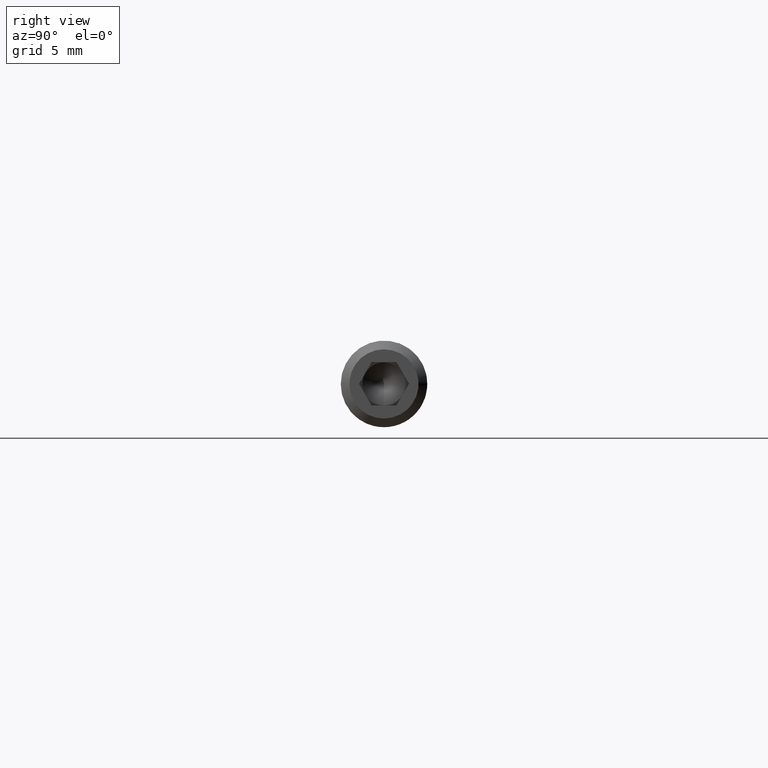
[diagram: clean part render]
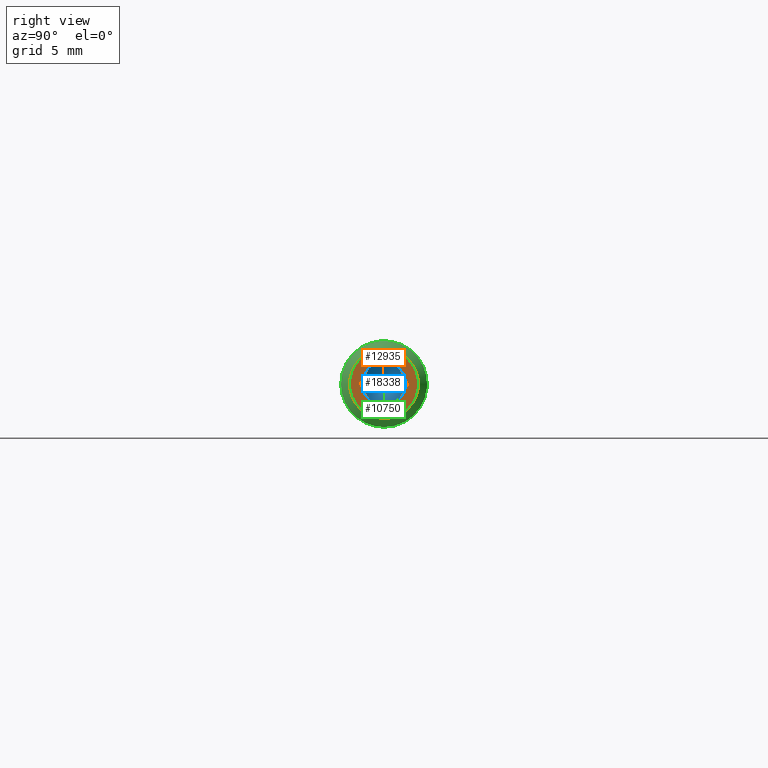
[diagram: same view with three faces highlighted in distinct colors, each labeled with its STEP entity id]
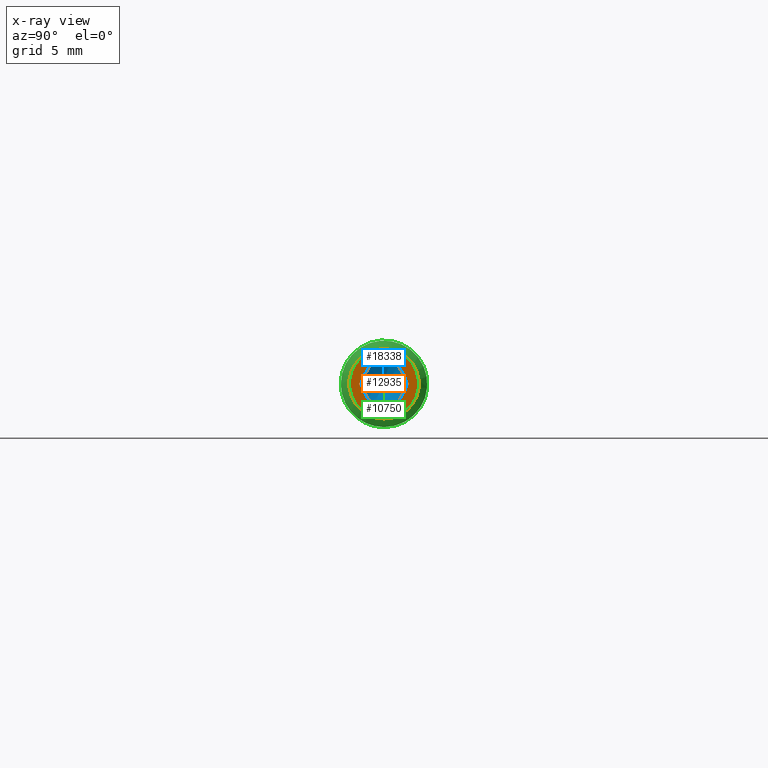
[diagram: x-ray of the same camera — body ghosted, the three highlighted faces saturated]
A machine part, right view with three faces highlighted in distinct colors.
The next image is the same camera in x-ray (body ghosted, the three faces saturated) — at least one of them is partly hidden behind the body in this view.
Their STEP definitions:

[orange] entity #12935 — the highlighted planar face has unit normal (1, 0, 0).
#53 = DIRECTION ( 'NONE',  ( 0.0000000000000000000, 1.000000000000000000, 0.0000000000000000000 ) ) ;
#325 = CARTESIAN_POINT ( 'NONE',  ( 50.00000000000000000, 0.8660254037844384900, 1.500000000000000000 ) ) ;
#434 = DIRECTION ( 'NONE',  ( 0.0000000000000000000, 0.5000000000000000000, 0.8660254037844386000 ) ) ;
#595 = CARTESIAN_POINT ( 'NONE',  ( 50.00000000000000000, -1.732050807568879000, 0.0000000000000000000 ) ) ;
#609 = PLANE ( 'NONE',  #17147 ) ;
#764 = FACE_OUTER_BOUND ( 'NONE', #2998, .T. ) ;
#879 = LINE ( 'NONE', #18397, #12787 ) ;
#1485 = EDGE_CURVE ( 'NONE', #17863, #10181, #879, .T. ) ;
#1592 = VECTOR ( 'NONE', #10855, 1000.000000000000000 ) ;
#1776 = ORIENTED_EDGE ( 'NONE', *, *, #6239, .T. ) ;
#2998 = EDGE_LOOP ( 'NONE', ( #1776 ) ) ;
#3606 = VECTOR ( 'NONE', #53, 1000.000000000000000 ) ;
#3886 = ORIENTED_EDGE ( 'NONE', *, *, #17257, .F. ) ;
#4361 = VERTEX_POINT ( 'NONE', #12421 ) ;
#6239 = EDGE_CURVE ( 'NONE', #16417, #16417, #10097, .T. ) ;
#6424 = CARTESIAN_POINT ( 'NONE',  ( 50.00000000000000000, 0.8660254037844384900, -1.499999999999999600 ) ) ;
#6779 = DIRECTION ( 'NONE',  ( 0.0000000000000000000, 0.0000000000000000000, -1.000000000000000000 ) ) ;
#6848 = DIRECTION ( 'NONE',  ( 0.0000000000000000000, -0.4999999999999999400, 0.8660254037844387100 ) ) ;
#7305 = VECTOR ( 'NONE', #17847, 1000.000000000000200 ) ;
#7415 = LINE ( 'NONE', #18643, #3606 ) ;
#8322 = VECTOR ( 'NONE', #9880, 1000.000000000000100 ) ;
#8689 = CARTESIAN_POINT ( 'NONE',  ( 50.00000000000000000, -1.732050807568878700, -4.766870681724039000E-018 ) ) ;
#8864 = CARTESIAN_POINT ( 'NONE',  ( 50.00000000000000000, -0.8660254037844396000, 1.500000000000000200 ) ) ;
#8963 = DIRECTION ( 'NONE',  ( 0.0000000000000000000, 0.0000000000000000000, -1.000000000000000000 ) ) ;
#9128 = ORIENTED_EDGE ( 'NONE', *, *, #17509, .F. ) ;
#9308 = EDGE_CURVE ( 'NONE', #4361, #17863, #13759, .T. ) ;
#9880 = DIRECTION ( 'NONE',  ( 0.0000000000000000000, 0.4999999999999997200, -0.8660254037844387100 ) ) ;
#10097 = CIRCLE ( 'NONE', #16151, 2.399999999999997700 ) ;
#10181 = VERTEX_POINT ( 'NONE', #325 ) ;
#10198 = CARTESIAN_POINT ( 'NONE',  ( 50.00000000000000000, -0.8660254037844408200, -1.499999999999999600 ) ) ;
#10623 = CARTESIAN_POINT ( 'NONE',  ( 50.00000000000000000, 0.0000000000000000000, 0.0000000000000000000 ) ) ;
#10798 = ORIENTED_EDGE ( 'NONE', *, *, #1485, .F. ) ;
#10855 = DIRECTION ( 'NONE',  ( 0.0000000000000000000, -1.000000000000000000, 1.251928832280965700E-016 ) ) ;
#11091 = EDGE_CURVE ( 'NONE', #13792, #15600, #11141, .T. ) ;
#11136 = CARTESIAN_POINT ( 'NONE',  ( 50.00000000000000000, 0.0000000000000000000, 0.0000000000000000000 ) ) ;
#11141 = LINE ( 'NONE', #12070, #7305 ) ;
#11325 = EDGE_LOOP ( 'NONE', ( #17320, #3886, #10798, #15673, #13219, #9128 ) ) ;
#12070 = CARTESIAN_POINT ( 'NONE',  ( 50.00000000000000000, -0.8660254037844396000, 1.500000000000000200 ) ) ;
#12306 = CARTESIAN_POINT ( 'NONE',  ( 50.00000000000000000, 0.8660254037844384900, 1.500000000000000000 ) ) ;
#12421 = CARTESIAN_POINT ( 'NONE',  ( 50.00000000000000000, 0.8660254037844384900, -1.499999999999999600 ) ) ;
#12538 = CARTESIAN_POINT ( 'NONE',  ( 50.00000000000000000, 0.0000000000000000000, -2.399999999999997700 ) ) ;
#12787 = VECTOR ( 'NONE', #6848, 1000.000000000000000 ) ;
#12935 = ADVANCED_FACE ( 'NONE', ( #17405, #764 ), #609, .T. ) ;
#13219 = ORIENTED_EDGE ( 'NONE', *, *, #17899, .F. ) ;
#13759 = LINE ( 'NONE', #6424, #14199 ) ;
#13792 = VERTEX_POINT ( 'NONE', #8864 ) ;
#14199 = VECTOR ( 'NONE', #434, 1000.000000000000200 ) ;
#14794 = DIRECTION ( 'NONE',  ( 1.000000000000000000, 0.0000000000000000000, 0.0000000000000000000 ) ) ;
#15288 = LINE ( 'NONE', #8689, #8322 ) ;
#15555 = CARTESIAN_POINT ( 'NONE',  ( 50.00000000000000000, 1.732050807568877000, 1.598725048708560900E-017 ) ) ;
#15600 = VERTEX_POINT ( 'NONE', #595 ) ;
#15629 = DIRECTION ( 'NONE',  ( 1.000000000000000000, 0.0000000000000000000, 0.0000000000000000000 ) ) ;
#15673 = ORIENTED_EDGE ( 'NONE', *, *, #9308, .F. ) ;
#15922 = VERTEX_POINT ( 'NONE', #10198 ) ;
#16151 = AXIS2_PLACEMENT_3D ( 'NONE', #11136, #15629, #6779 ) ;
#16417 = VERTEX_POINT ( 'NONE', #12538 ) ;
#16879 = LINE ( 'NONE', #12306, #1592 ) ;
#17147 = AXIS2_PLACEMENT_3D ( 'NONE', #10623, #14794, #8963 ) ;
#17257 = EDGE_CURVE ( 'NONE', #10181, #13792, #16879, .T. ) ;
#17320 = ORIENTED_EDGE ( 'NONE', *, *, #11091, .F. ) ;
#17405 = FACE_BOUND ( 'NONE', #11325, .T. ) ;
#17509 = EDGE_CURVE ( 'NONE', #15600, #15922, #15288, .T. ) ;
#17847 = DIRECTION ( 'NONE',  ( 0.0000000000000000000, -0.5000000000000001100, -0.8660254037844384900 ) ) ;
#17863 = VERTEX_POINT ( 'NONE', #15555 ) ;
#17899 = EDGE_CURVE ( 'NONE', #15922, #4361, #7415, .T. ) ;
#18397 = CARTESIAN_POINT ( 'NONE',  ( 50.00000000000000000, 1.732050807568877000, 1.598725048708560900E-017 ) ) ;
#18643 = CARTESIAN_POINT ( 'NONE',  ( 50.00000000000000000, -0.8660254037844408200, -1.499999999999999600 ) ) ;

[blue] entity #18338 — the highlighted conical surface has half-angle 59 deg.
#188 = ORIENTED_EDGE ( 'NONE', *, *, #13650, .F. ) ;
#295 = VERTEX_POINT ( 'NONE', #16612 ) ;
#521 = CARTESIAN_POINT ( 'NONE',  ( 46.50000000000000000, 1.299038105676657600, -0.7500000000000000000 ) ) ;
#780 = DIRECTION ( 'NONE',  ( -1.000000000000000000, -0.0000000000000000000, 0.0000000000000000000 ) ) ;
#790 = CIRCLE ( 'NONE', #14858, 1.499999999999999100 ) ;
#1678 = CIRCLE ( 'NONE', #13286, 1.499999999999999100 ) ;
#2357 = CARTESIAN_POINT ( 'NONE',  ( 46.50000000000000000, 1.299038105676657100, 0.7499999999999993300 ) ) ;
#2593 = DIRECTION ( 'NONE',  ( 1.000000000000000000, -0.0000000000000000000, -1.763508658945533700E-016 ) ) ;
#3279 = AXIS2_PLACEMENT_3D ( 'NONE', #6639, #10983, #8569 ) ;
#3629 = CARTESIAN_POINT ( 'NONE',  ( 46.50000000000000000, 0.0000000000000000000, -1.108453679117369600E-016 ) ) ;
#3670 = AXIS2_PLACEMENT_3D ( 'NONE', #15270, #780, #15333 ) ;
#4271 = FACE_OUTER_BOUND ( 'NONE', #14506, .T. ) ;
#4586 = ORIENTED_EDGE ( 'NONE', *, *, #11759, .F. ) ;
#5322 = CARTESIAN_POINT ( 'NONE',  ( 46.50000000000000000, 0.0000000000000000000, -1.108453679117369600E-016 ) ) ;
#5502 = EDGE_CURVE ( 'NONE', #11753, #10122, #10395, .T. ) ;
#5755 = ORIENTED_EDGE ( 'NONE', *, *, #13461, .F. ) ;
#5923 = CIRCLE ( 'NONE', #3279, 1.499999999999999100 ) ;
#6531 = CARTESIAN_POINT ( 'NONE',  ( 46.50000000000000000, -1.299038105676657600, -0.7499999999999993300 ) ) ;
#6639 = CARTESIAN_POINT ( 'NONE',  ( 46.50000000000000000, 0.0000000000000000000, -1.108453679117369600E-016 ) ) ;
#7098 = ORIENTED_EDGE ( 'NONE', *, *, #5502, .F. ) ;
#7264 = VERTEX_POINT ( 'NONE', #13537 ) ;
#7490 = CARTESIAN_POINT ( 'NONE',  ( 46.50000000000000000, 0.0000000000000000000, -5.510910596163092500E-016 ) ) ;
#7516 = EDGE_CURVE ( 'NONE', #295, #11753, #5923, .T. ) ;
#8091 = DIRECTION ( 'NONE',  ( -1.000000000000000000, -0.0000000000000000000, 0.0000000000000000000 ) ) ;
#8218 = DIRECTION ( 'NONE',  ( 0.0000000000000000000, 0.0000000000000000000, 1.000000000000000000 ) ) ;
#8257 = CARTESIAN_POINT ( 'NONE',  ( 46.50000000000000000, 0.0000000000000000000, -1.108453679117369600E-016 ) ) ;
#8569 = DIRECTION ( 'NONE',  ( 0.0000000000000000000, 0.0000000000000000000, 1.000000000000000000 ) ) ;
#9143 = DIRECTION ( 'NONE',  ( 0.0000000000000000000, 0.0000000000000000000, -1.000000000000000000 ) ) ;
#9289 = DIRECTION ( 'NONE',  ( 0.0000000000000000000, 0.0000000000000000000, 1.000000000000000000 ) ) ;
#10122 = VERTEX_POINT ( 'NONE', #521 ) ;
#10123 = EDGE_CURVE ( 'NONE', #10880, #10122, #12621, .T. ) ;
#10395 = CIRCLE ( 'NONE', #13973, 1.499999999999999100 ) ;
#10820 = VERTEX_POINT ( 'NONE', #6531 ) ;
#10880 = VERTEX_POINT ( 'NONE', #12614 ) ;
#10983 = DIRECTION ( 'NONE',  ( -1.000000000000000000, -0.0000000000000000000, 0.0000000000000000000 ) ) ;
#11148 = DIRECTION ( 'NONE',  ( -1.000000000000000000, -0.0000000000000000000, 0.0000000000000000000 ) ) ;
#11470 = CONICAL_SURFACE ( 'NONE', #14284, 1.499999999999999100, 1.029744258676647700 ) ;
#11576 = CIRCLE ( 'NONE', #3670, 1.499999999999999100 ) ;
#11753 = VERTEX_POINT ( 'NONE', #2357 ) ;
#11759 = EDGE_CURVE ( 'NONE', #10880, #10820, #1678, .T. ) ;
#11849 = DIRECTION ( 'NONE',  ( 1.000000000000000000, -0.0000000000000000000, -1.763508658945533700E-016 ) ) ;
#12464 = AXIS2_PLACEMENT_3D ( 'NONE', #7490, #11849, #9143 ) ;
#12595 = ORIENTED_EDGE ( 'NONE', *, *, #10123, .T. ) ;
#12614 = CARTESIAN_POINT ( 'NONE',  ( 46.50000000000000000, 0.0000000000000000000, -1.499999999999999800 ) ) ;
#12621 = CIRCLE ( 'NONE', #12464, 1.499999999999999100 ) ;
#13286 = AXIS2_PLACEMENT_3D ( 'NONE', #3629, #15293, #9289 ) ;
#13461 = EDGE_CURVE ( 'NONE', #10820, #7264, #11576, .T. ) ;
#13537 = CARTESIAN_POINT ( 'NONE',  ( 46.50000000000000000, -1.299038105676656900, 0.7499999999999995600 ) ) ;
#13650 = EDGE_CURVE ( 'NONE', #7264, #295, #790, .T. ) ;
#13973 = AXIS2_PLACEMENT_3D ( 'NONE', #5322, #8091, #8218 ) ;
#14284 = AXIS2_PLACEMENT_3D ( 'NONE', #17052, #2593, #15659 ) ;
#14506 = EDGE_LOOP ( 'NONE', ( #12595, #7098, #14927, #188, #5755, #4586 ) ) ;
#14858 = AXIS2_PLACEMENT_3D ( 'NONE', #8257, #11148, #18298 ) ;
#14927 = ORIENTED_EDGE ( 'NONE', *, *, #7516, .F. ) ;
#15270 = CARTESIAN_POINT ( 'NONE',  ( 46.50000000000000000, 0.0000000000000000000, -1.108453679117369600E-016 ) ) ;
#15293 = DIRECTION ( 'NONE',  ( -1.000000000000000000, -0.0000000000000000000, 0.0000000000000000000 ) ) ;
#15333 = DIRECTION ( 'NONE',  ( 0.0000000000000000000, 0.0000000000000000000, 1.000000000000000000 ) ) ;
#15659 = DIRECTION ( 'NONE',  ( 0.0000000000000000000, 0.0000000000000000000, -1.000000000000000000 ) ) ;
#16612 = CARTESIAN_POINT ( 'NONE',  ( 46.50000000000000000, 1.877893248421447800E-016, 1.499999999999999300 ) ) ;
#17052 = CARTESIAN_POINT ( 'NONE',  ( 46.50000000000000000, 0.0000000000000000000, -5.510910596163092500E-016 ) ) ;
#18298 = DIRECTION ( 'NONE',  ( 0.0000000000000000000, 0.0000000000000000000, 1.000000000000000000 ) ) ;
#18338 = ADVANCED_FACE ( 'NONE', ( #4271 ), #11470, .F. ) ;

[green] entity #10750 — the highlighted conical surface has half-angle 45 deg.
#2898 = VERTEX_POINT ( 'NONE', #11207 ) ;
#4169 = CONICAL_SURFACE ( 'NONE', #13035, 2.399999999999997700, 0.7853981633974479500 ) ;
#4296 = FACE_BOUND ( 'NONE', #5100, .T. ) ;
#4759 = FACE_OUTER_BOUND ( 'NONE', #6606, .T. ) ;
#4912 = DIRECTION ( 'NONE',  ( -1.000000000000000000, 0.0000000000000000000, 0.0000000000000000000 ) ) ;
#5100 = EDGE_LOOP ( 'NONE', ( #17511 ) ) ;
#6239 = EDGE_CURVE ( 'NONE', #16417, #16417, #10097, .T. ) ;
#6606 = EDGE_LOOP ( 'NONE', ( #10136 ) ) ;
#6779 = DIRECTION ( 'NONE',  ( 0.0000000000000000000, 0.0000000000000000000, -1.000000000000000000 ) ) ;
#7736 = DIRECTION ( 'NONE',  ( 0.0000000000000000000, 0.0000000000000000000, 1.000000000000000000 ) ) ;
#9688 = DIRECTION ( 'NONE',  ( -1.000000000000000000, 0.0000000000000000000, 0.0000000000000000000 ) ) ;
#9752 = CARTESIAN_POINT ( 'NONE',  ( 49.39999999999999900, 0.0000000000000000000, 0.0000000000000000000 ) ) ;
#9877 = DIRECTION ( 'NONE',  ( 0.0000000000000000000, 0.0000000000000000000, -1.000000000000000000 ) ) ;
#10097 = CIRCLE ( 'NONE', #16151, 2.399999999999997700 ) ;
#10136 = ORIENTED_EDGE ( 'NONE', *, *, #15869, .F. ) ;
#10750 = ADVANCED_FACE ( 'NONE', ( #4759, #4296 ), #4169, .T. ) ;
#11136 = CARTESIAN_POINT ( 'NONE',  ( 50.00000000000000000, 0.0000000000000000000, 0.0000000000000000000 ) ) ;
#11207 = CARTESIAN_POINT ( 'NONE',  ( 49.39999999999999900, 0.0000000000000000000, -3.000000000000000400 ) ) ;
#12144 = CARTESIAN_POINT ( 'NONE',  ( 50.00000000000000000, 0.0000000000000000000, 0.0000000000000000000 ) ) ;
#12538 = CARTESIAN_POINT ( 'NONE',  ( 50.00000000000000000, 0.0000000000000000000, -2.399999999999997700 ) ) ;
#13035 = AXIS2_PLACEMENT_3D ( 'NONE', #12144, #4912, #7736 ) ;
#13748 = CIRCLE ( 'NONE', #16067, 3.000000000000000400 ) ;
#15629 = DIRECTION ( 'NONE',  ( 1.000000000000000000, 0.0000000000000000000, 0.0000000000000000000 ) ) ;
#15869 = EDGE_CURVE ( 'NONE', #2898, #2898, #13748, .T. ) ;
#16067 = AXIS2_PLACEMENT_3D ( 'NONE', #9752, #9688, #9877 ) ;
#16151 = AXIS2_PLACEMENT_3D ( 'NONE', #11136, #15629, #6779 ) ;
#16417 = VERTEX_POINT ( 'NONE', #12538 ) ;
#17511 = ORIENTED_EDGE ( 'NONE', *, *, #6239, .F. ) ;